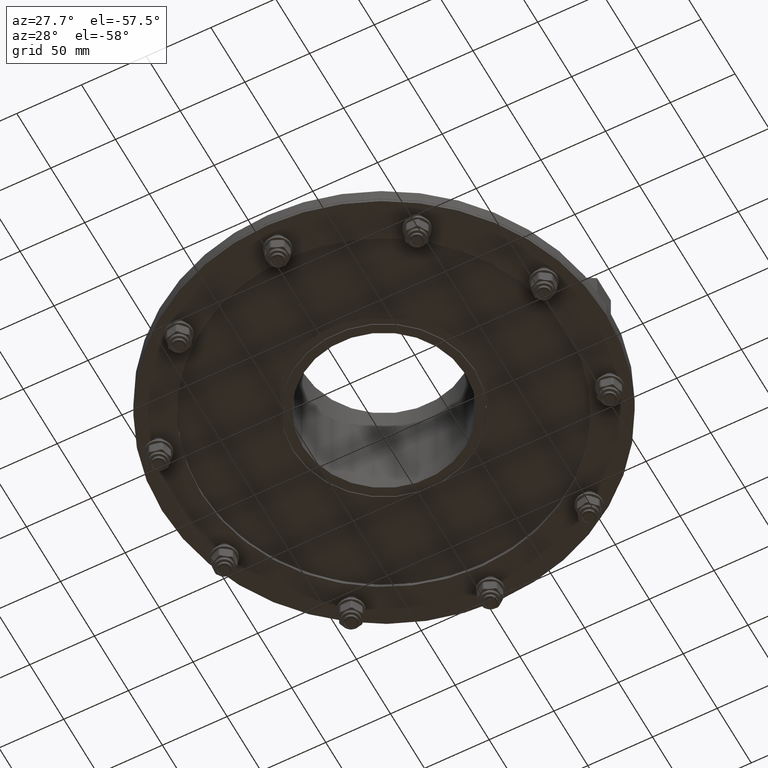
[diagram: clean part render]
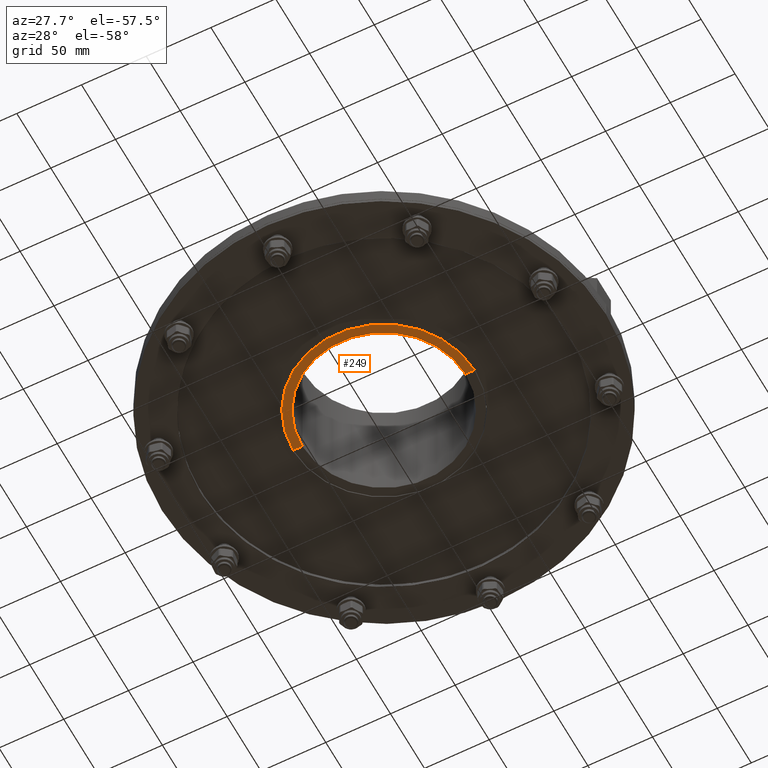
[diagram: same view with one face highlighted and labeled with its STEP entity id]
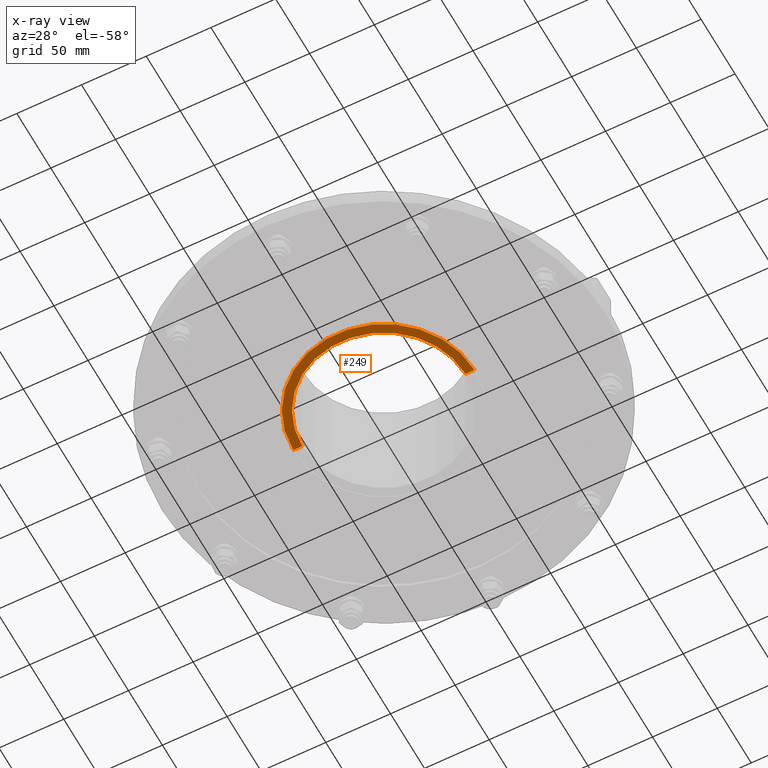
[diagram: x-ray of the same camera — body ghosted, the highlighted face saturated]
A machine part, auxiliary view. The second image highlights one B-rep face of the part: STEP entity #249.
The next image is the same camera in x-ray: the body ghosted, the highlighted face saturated — about 0% of this face is hidden behind the body in this view.
In plain terms, the highlighted planar face has unit normal (-0, -0, -1).
Its self-contained STEP definition (entity closure, byte-faithful):
#153=CARTESIAN_POINT('',(69.999714285131191,0.2,0.0));
#154=VERTEX_POINT('',#153);
#169=CARTESIAN_POINT('',(62.999682538882695,0.2,0.0));
#170=VERTEX_POINT('',#169);
#177=CARTESIAN_POINT('',(69.999714285131191,0.2,0.0));
#178=DIRECTION('',(-1.0,0.0,0.0));
#179=VECTOR('',#178,7.000031746248496);
#180=LINE('',#177,#179);
#181=EDGE_CURVE('',#154,#170,#180,.T.);
#191=CARTESIAN_POINT('',(-69.999714285131191,0.2,0.0));
#192=VERTEX_POINT('',#191);
#201=CARTESIAN_POINT('',(-62.999682538882695,0.2,0.0));
#202=VERTEX_POINT('',#201);
#203=CARTESIAN_POINT('',(-62.999682538882695,0.2,0.0));
#204=DIRECTION('',(-1.0,0.0,0.0));
#205=VECTOR('',#204,7.000031746248496);
#206=LINE('',#203,#205);
#207=EDGE_CURVE('',#202,#192,#206,.T.);
#226=CARTESIAN_POINT('',(0.0,0.0,0.0));
#227=DIRECTION('',(0.0,0.0,-1.0));
#228=DIRECTION('',(-1.0,0.0,0.0));
#229=AXIS2_PLACEMENT_3D('',#226,#227,#228);
#230=PLANE('',#229);
#231=ORIENTED_EDGE('',*,*,#207,.T.);
#232=CARTESIAN_POINT('',(0.0,0.0,0.0));
#233=DIRECTION('',(0.0,0.0,-1.0));
#234=DIRECTION('',(-1.0,0.0,0.0));
#235=AXIS2_PLACEMENT_3D('',#232,#233,#234);
#236=CIRCLE('',#235,70.0);
#237=EDGE_CURVE('',#192,#154,#236,.T.);
#238=ORIENTED_EDGE('',*,*,#237,.T.);
#239=ORIENTED_EDGE('',*,*,#181,.T.);
#240=CARTESIAN_POINT('',(0.0,0.0,0.0));
#241=DIRECTION('',(0.0,0.0,1.0));
#242=DIRECTION('',(-1.0,0.0,0.0));
#243=AXIS2_PLACEMENT_3D('',#240,#241,#242);
#244=CIRCLE('',#243,63.000000000000007);
#245=EDGE_CURVE('',#170,#202,#244,.T.);
#246=ORIENTED_EDGE('',*,*,#245,.T.);
#247=EDGE_LOOP('',(#231,#238,#239,#246));
#248=FACE_OUTER_BOUND('',#247,.T.);
#249=ADVANCED_FACE('',(#248),#230,.T.);